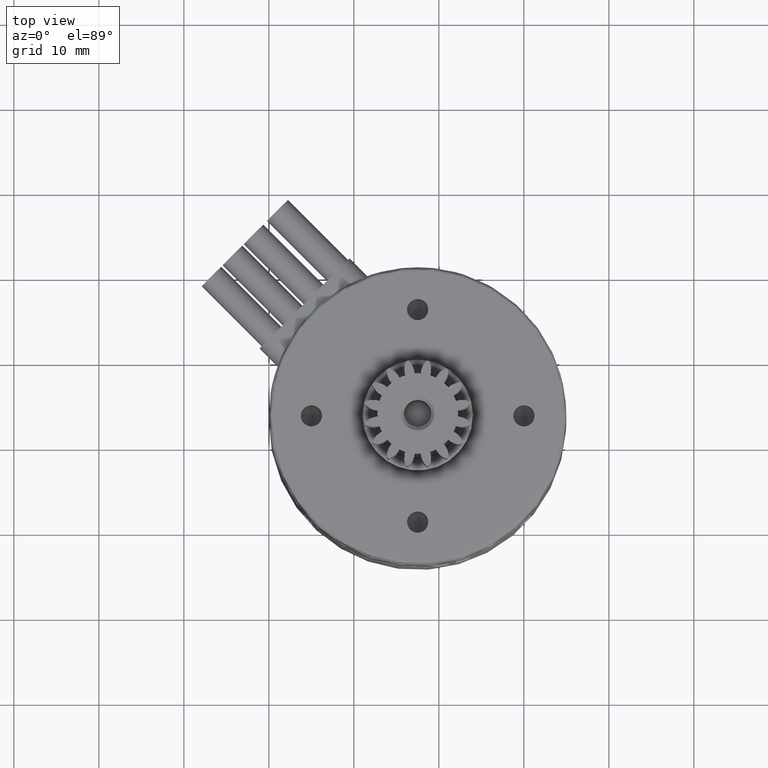
[diagram: clean part render]
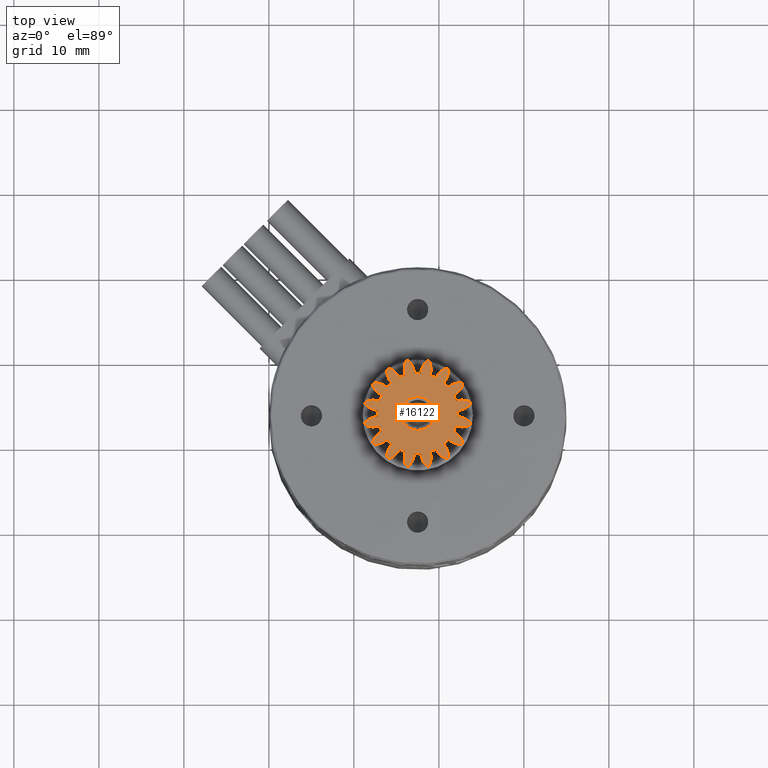
[diagram: same view with one face highlighted and labeled with its STEP entity id]
A machine part, top view. The second image highlights one B-rep face of the part: STEP entity #16122.
In plain terms, the highlighted planar face has unit normal (-0, 0, -1).
Its self-contained STEP definition (entity closure, byte-faithful):
#16 = ORIENTED_EDGE ( 'NONE', *, *, #18248, .F. ) ;
#38 = CARTESIAN_POINT ( 'NONE',  ( 19.64160035881336341, 7.460667869012042708, 16.43799999999999883 ) ) ;
#48 = EDGE_CURVE ( 'NONE', #3403, #8723, #20826, .T. ) ;
#72 = DIRECTION ( 'NONE',  ( -7.344299220900964339E-16, 1.000000000000000000, 0.0000000000000000000 ) ) ;
#78 = DIRECTION ( 'NONE',  ( -4.560602108308974500E-31, 8.326672684688696240E-17, -1.000000000000000000 ) ) ;
#124 = VERTEX_POINT ( 'NONE', #7752 ) ;
#179 = DIRECTION ( 'NONE',  ( -4.560602108308974500E-31, 8.326672684688696240E-17, -1.000000000000000000 ) ) ;
#191 = EDGE_CURVE ( 'NONE', #17688, #6546, #9342, .T. ) ;
#192 = VERTEX_POINT ( 'NONE', #6217 ) ;
#216 = CARTESIAN_POINT ( 'NONE',  ( 12.42549779714402547, 4.643199292763132036, 16.43799999999999883 ) ) ;
#241 = AXIS2_PLACEMENT_3D ( 'NONE', #12802, #19416, #4462 ) ;
#242 = AXIS2_PLACEMENT_3D ( 'NONE', #1422, #8036, #14710 ) ;
#255 = VERTEX_POINT ( 'NONE', #11267 ) ;
#332 = CARTESIAN_POINT ( 'NONE',  ( 13.00826806018880610, 4.713051667194275041, 16.43799999999999883 ) ) ;
#354 = VERTEX_POINT ( 'NONE', #19208 ) ;
#356 = ORIENTED_EDGE ( 'NONE', *, *, #19332, .F. ) ;
#359 = ORIENTED_EDGE ( 'NONE', *, *, #8009, .T. ) ;
#429 = VERTEX_POINT ( 'NONE', #13133 ) ;
#443 = DIRECTION ( 'NONE',  ( -4.560602108308974500E-31, 8.326672684688696240E-17, -1.000000000000000000 ) ) ;
#504 = DIRECTION ( 'NONE',  ( 1.468859844180192868E-15, 1.000000000000000000, 0.0000000000000000000 ) ) ;
#506 = ORIENTED_EDGE ( 'NONE', *, *, #17057, .F. ) ;
#560 = VERTEX_POINT ( 'NONE', #38 ) ;
#594 = ORIENTED_EDGE ( 'NONE', *, *, #5310, .F. ) ;
#602 = CARTESIAN_POINT ( 'NONE',  ( 17.49999999999999645, 3.249999999999995115, 16.43799999999999883 ) ) ;
#621 = VERTEX_POINT ( 'NONE', #15477 ) ;
#644 = EDGE_LOOP ( 'NONE', ( #594, #1822, #14372, #14047, #3829, #14869, #17156, #10220, #356, #14486, #17700, #9853, #5382, #19075, #4258, #18854, #17102, #21451, #6020, #11764, #8272, #7729, #12358, #5406, #12091, #20015, #15062, #11510, #16, #9834, #17848, #506, #4329, #13867, #12229, #16335, #11917, #6565, #13084, #2199, #8430, #5374, #21521, #3550, #15057, #10336, #15132, #19549, #13781, #4993, #4278, #9212, #13935, #1363, #10090, #1572, #5559, #15246, #20707, #20390, #10887, #18899, #17422, #11987 ) ) ;
#650 = AXIS2_PLACEMENT_3D ( 'NONE', #12245, #18870, #3922 ) ;
#721 = CARTESIAN_POINT ( 'NONE',  ( 17.49999999999999645, 3.249999999999995115, 16.43799999999999883 ) ) ;
#825 = EDGE_CURVE ( 'NONE', #621, #12781, #5616, .T. ) ;
#835 = EDGE_LOOP ( 'NONE', ( #359 ) ) ;
#849 = CARTESIAN_POINT ( 'NONE',  ( 17.49999999999999645, 3.249999999999995115, 16.43799999999999883 ) ) ;
#1041 = DIRECTION ( 'NONE',  ( -4.560602108308974500E-31, 8.326672684688696240E-17, -1.000000000000000000 ) ) ;
#1110 = VERTEX_POINT ( 'NONE', #3873 ) ;
#1189 = CARTESIAN_POINT ( 'NONE',  ( 22.20970483844815391, 3.617227905663505272, 16.43799999999999883 ) ) ;
#1262 = CIRCLE ( 'NONE', #13092, 4.723999999999998423 ) ;
#1279 = VERTEX_POINT ( 'NONE', #19356 ) ;
#1329 = AXIS2_PLACEMENT_3D ( 'NONE', #17771, #2848, #9512 ) ;
#1363 = ORIENTED_EDGE ( 'NONE', *, *, #17955, .F. ) ;
#1387 = VERTEX_POINT ( 'NONE', #6252 ) ;
#1411 = CARTESIAN_POINT ( 'NONE',  ( 12.17453640476358068, 6.615922978294589640, 16.43799999999999883 ) ) ;
#1422 = CARTESIAN_POINT ( 'NONE',  ( 17.49999999999999645, 3.249999999999995115, 16.43799999999999883 ) ) ;
#1474 = AXIS2_PLACEMENT_3D ( 'NONE', #13990, #4041, #10717 ) ;
#1499 = EDGE_CURVE ( 'NONE', #8723, #15403, #8111, .T. ) ;
#1572 = ORIENTED_EDGE ( 'NONE', *, *, #16524, .F. ) ;
#1613 = VERTEX_POINT ( 'NONE', #8238 ) ;
#1637 = DIRECTION ( 'NONE',  ( -4.406579532540578603E-15, 1.000000000000000000, 0.0000000000000000000 ) ) ;
#1685 = CARTESIAN_POINT ( 'NONE',  ( 20.57059488631817246, 6.839933570989387590, 16.43799999999999883 ) ) ;
#1699 = VERTEX_POINT ( 'NONE', #1685 ) ;
#1822 = ORIENTED_EDGE ( 'NONE', *, *, #13889, .F. ) ;
#1840 = DIRECTION ( 'NONE',  ( -4.560602108308974500E-31, 8.326672684688696240E-17, -1.000000000000000000 ) ) ;
#1886 = VERTEX_POINT ( 'NONE', #4440 ) ;
#1953 = CARTESIAN_POINT ( 'NONE',  ( 21.71066786901203827, 1.108399641186615936, 16.43799999999999883 ) ) ;
#1985 = EDGE_CURVE ( 'NONE', #14928, #20889, #3616, .T. ) ;
#1993 = CARTESIAN_POINT ( 'NONE',  ( 21.13200385836255535, -1.897674035216246891, 16.43799999999999883 ) ) ;
#2058 = CARTESIAN_POINT ( 'NONE',  ( 22.82546359523644242, 6.615922978294554113, 16.43799999999999883 ) ) ;
#2182 = EDGE_CURVE ( 'NONE', #18251, #20068, #14756, .T. ) ;
#2193 = DIRECTION ( 'NONE',  ( 0.0000000000000000000, -1.000000000000000000, 0.0000000000000000000 ) ) ;
#2199 = ORIENTED_EDGE ( 'NONE', *, *, #48, .F. ) ;
#2409 = DIRECTION ( 'NONE',  ( -4.560602108308974500E-31, 8.326672684688696240E-17, -1.000000000000000000 ) ) ;
#2447 = VERTEX_POINT ( 'NONE', #18902 ) ;
#2449 = CARTESIAN_POINT ( 'NONE',  ( 14.27092376817381236, 7.405074435578862690, 16.43799999999999883 ) ) ;
#2482 = EDGE_CURVE ( 'NONE', #18735, #9056, #17594, .T. ) ;
#2500 = EDGE_CURVE ( 'NONE', #9529, #16804, #5088, .T. ) ;
#2637 = DIRECTION ( 'NONE',  ( -4.560602108308974500E-31, 8.326672684688696240E-17, -1.000000000000000000 ) ) ;
#2669 = CARTESIAN_POINT ( 'NONE',  ( 14.89692574867159180, 7.823355586242648485, 16.43799999999999883 ) ) ;
#2728 = DIRECTION ( 'NONE',  ( -4.560602108308974500E-31, 8.326672684688696240E-17, -1.000000000000000000 ) ) ;
#2810 = EDGE_CURVE ( 'NONE', #9051, #12481, #1262, .T. ) ;
#2848 = DIRECTION ( 'NONE',  ( -4.560602108308974500E-31, 8.326672684688695007E-17, -1.000000000000000000 ) ) ;
#2902 = CARTESIAN_POINT ( 'NONE',  ( 18.96305166719422886, -1.241731939811213437, 16.43799999999999883 ) ) ;
#2903 = CARTESIAN_POINT ( 'NONE',  ( 13.00826806018878479, 1.786948332805779804, 16.43799999999999883 ) ) ;
#2943 = CARTESIAN_POINT ( 'NONE',  ( 13.86799614163733452, -1.897674035216170951, 16.43799999999999883 ) ) ;
#3012 = AXIS2_PLACEMENT_3D ( 'NONE', #18192, #3281, #9930 ) ;
#3126 = CARTESIAN_POINT ( 'NONE',  ( 23.70816977518319391, 2.178259339904550007, 16.43799999999999883 ) ) ;
#3181 = EDGE_CURVE ( 'NONE', #4449, #17505, #11340, .T. ) ;
#3183 = CIRCLE ( 'NONE', #20902, 2.239999999999999769 ) ;
#3201 = CARTESIAN_POINT ( 'NONE',  ( 18.57174066009541846, 9.458169775183190353, 16.43799999999999883 ) ) ;
#3281 = DIRECTION ( 'NONE',  ( -4.560602108308974500E-31, 8.326672684688696240E-17, -1.000000000000000000 ) ) ;
#3309 = CARTESIAN_POINT ( 'NONE',  ( 17.49999999999999645, 3.249999999999995115, 16.43799999999999883 ) ) ;
#3403 = VERTEX_POINT ( 'NONE', #7944 ) ;
#3432 = DIRECTION ( 'NONE',  ( 2.312964634635743844E-14, 1.000000000000000000, 0.0000000000000000000 ) ) ;
#3444 = AXIS2_PLACEMENT_3D ( 'NONE', #7858, #14533, #21142 ) ;
#3522 = DIRECTION ( 'NONE',  ( 0.0000000000000000000, 1.000000000000000000, 0.0000000000000000000 ) ) ;
#3544 = VERTEX_POINT ( 'NONE', #14828 ) ;
#3550 = ORIENTED_EDGE ( 'NONE', *, *, #3709, .F. ) ;
#3616 = CIRCLE ( 'NONE', #20303, 2.239999999999999769 ) ;
#3628 = DIRECTION ( 'NONE',  ( -1.028201890926134929E-14, 1.000000000000000000, 0.0000000000000000000 ) ) ;
#3709 = EDGE_CURVE ( 'NONE', #18360, #9529, #17582, .T. ) ;
#3829 = ORIENTED_EDGE ( 'NONE', *, *, #21263, .F. ) ;
#3867 = DIRECTION ( 'NONE',  ( -4.560602108308974500E-31, 8.326672684688696240E-17, -1.000000000000000000 ) ) ;
#3873 = CARTESIAN_POINT ( 'NONE',  ( 14.42940511368179735, -0.3399335709893757107, 16.43799999999999883 ) ) ;
#3896 = AXIS2_PLACEMENT_3D ( 'NONE', #4150, #10830, #17453 ) ;
#3922 = DIRECTION ( 'NONE',  ( 1.762631813016231441E-14, 1.000000000000000000, 0.0000000000000000000 ) ) ;
#3944 = EDGE_CURVE ( 'NONE', #9056, #7755, #10590, .T. ) ;
#3962 = CARTESIAN_POINT ( 'NONE',  ( 17.49999999999999645, 3.249999999999995115, 16.43799999999999883 ) ) ;
#3973 = CARTESIAN_POINT ( 'NONE',  ( 16.84522039075994115, 8.471383010225283172, 16.43799999999999883 ) ) ;
#4020 = VERTEX_POINT ( 'NONE', #13267 ) ;
#4041 = DIRECTION ( 'NONE',  ( -4.560602108308974500E-31, 8.326672684688696240E-17, -1.000000000000000000 ) ) ;
#4063 = DIRECTION ( 'NONE',  ( -4.560602108308974500E-31, 8.326672684688696240E-17, -1.000000000000000000 ) ) ;
#4076 = CARTESIAN_POINT ( 'NONE',  ( 13.86799614163740557, 8.397674035216212474, 16.43799999999999883 ) ) ;
#4082 = CIRCLE ( 'NONE', #650, 4.723999999999998423 ) ;
#4102 = CIRCLE ( 'NONE', #11101, 2.239999999999999769 ) ;
#4106 = CARTESIAN_POINT ( 'NONE',  ( 11.29183022481679721, 4.321740660095398034, 16.43799999999999883 ) ) ;
#4112 = DIRECTION ( 'NONE',  ( 0.0000000000000000000, 1.000000000000000000, 0.0000000000000000000 ) ) ;
#4150 = CARTESIAN_POINT ( 'NONE',  ( 16.84522039075986655, -1.971383010225281618, 16.43799999999999883 ) ) ;
#4153 = DIRECTION ( 'NONE',  ( 0.0000000000000000000, 1.000000000000000000, 0.0000000000000000000 ) ) ;
#4161 = EDGE_CURVE ( 'NONE', #20889, #4548, #13791, .T. ) ;
#4187 = CARTESIAN_POINT ( 'NONE',  ( 17.49999999999999645, 3.249999999999995115, 16.43799999999999883 ) ) ;
#4258 = ORIENTED_EDGE ( 'NONE', *, *, #191, .F. ) ;
#4260 = EDGE_CURVE ( 'NONE', #255, #1387, #20316, .T. ) ;
#4268 = CARTESIAN_POINT ( 'NONE',  ( 15.35839964118666678, 7.460667869012057807, 16.43799999999999883 ) ) ;
#4278 = ORIENTED_EDGE ( 'NONE', *, *, #4611, .F. ) ;
#4303 = AXIS2_PLACEMENT_3D ( 'NONE', #13525, #20128, #5203 ) ;
#4329 = ORIENTED_EDGE ( 'NONE', *, *, #20745, .F. ) ;
#4331 = CIRCLE ( 'NONE', #5346, 2.239999999999999769 ) ;
#4365 = CIRCLE ( 'NONE', #9251, 6.299999999999997158 ) ;
#4428 = DIRECTION ( 'NONE',  ( -4.560602108308974500E-31, 8.326672684688696240E-17, -1.000000000000000000 ) ) ;
#4440 = CARTESIAN_POINT ( 'NONE',  ( 18.96305166719429280, 7.741731939811183238, 16.43799999999999883 ) ) ;
#4449 = VERTEX_POINT ( 'NONE', #14858 ) ;
#4462 = DIRECTION ( 'NONE',  ( 3.097720492815728645E-15, 1.000000000000000000, 0.0000000000000000000 ) ) ;
#4530 = CARTESIAN_POINT ( 'NONE',  ( 17.49999999999999645, 3.249999999999995115, 16.43799999999999883 ) ) ;
#4548 = VERTEX_POINT ( 'NONE', #5380 ) ;
#4607 = DIRECTION ( 'NONE',  ( 1.548860246407864322E-15, 1.000000000000000000, 0.0000000000000000000 ) ) ;
#4611 = EDGE_CURVE ( 'NONE', #354, #6172, #17893, .T. ) ;
#4656 = CIRCLE ( 'NONE', #14777, 4.723999999999998423 ) ;
#4736 = CIRCLE ( 'NONE', #20066, 6.299999999999997158 ) ;
#4746 = VERTEX_POINT ( 'NONE', #21386 ) ;
#4768 = EDGE_CURVE ( 'NONE', #1699, #16063, #9605, .T. ) ;
#4774 = VERTEX_POINT ( 'NONE', #6679 ) ;
#4793 = AXIS2_PLACEMENT_3D ( 'NONE', #6531, #13227, #19827 ) ;
#4836 = CARTESIAN_POINT ( 'NONE',  ( 17.49999999999999645, 3.249999999999995115, 16.43799999999999883 ) ) ;
#4840 = CARTESIAN_POINT ( 'NONE',  ( 12.92664441375735329, 5.853074251328418853, 16.43799999999999883 ) ) ;
#4884 = CARTESIAN_POINT ( 'NONE',  ( 11.35426161594251049, 4.635604458250040416, 16.43799999999999883 ) ) ;
#4887 = EDGE_CURVE ( 'NONE', #12481, #15880, #10668, .T. ) ;
#4993 = ORIENTED_EDGE ( 'NONE', *, *, #18539, .F. ) ;
#5059 = EDGE_CURVE ( 'NONE', #6352, #9746, #18649, .T. ) ;
#5074 = CIRCLE ( 'NONE', #242, 4.723999999999998423 ) ;
#5085 = CIRCLE ( 'NONE', #9622, 2.239999999999999769 ) ;
#5088 = CIRCLE ( 'NONE', #9233, 4.723999999999998423 ) ;
#5093 = DIRECTION ( 'NONE',  ( -4.560602108308974500E-31, 8.326672684688696240E-17, -1.000000000000000000 ) ) ;
#5203 = DIRECTION ( 'NONE',  ( 6.663540971212500378E-14, 1.000000000000000000, 0.0000000000000000000 ) ) ;
#5310 = EDGE_CURVE ( 'NONE', #192, #6112, #19000, .T. ) ;
#5346 = AXIS2_PLACEMENT_3D ( 'NONE', #19011, #4063, #10736 ) ;
#5357 = DIRECTION ( 'NONE',  ( -4.560602108308974500E-31, 8.326672684688696240E-17, -1.000000000000000000 ) ) ;
#5374 = ORIENTED_EDGE ( 'NONE', *, *, #11445, .F. ) ;
#5380 = CARTESIAN_POINT ( 'NONE',  ( 15.35839964118660816, -0.9606678690120387110, 16.43799999999999883 ) ) ;
#5382 = ORIENTED_EDGE ( 'NONE', *, *, #19456, .F. ) ;
#5386 = CARTESIAN_POINT ( 'NONE',  ( 22.57450220285598164, 4.643199292763095620, 16.43799999999999883 ) ) ;
#5406 = ORIENTED_EDGE ( 'NONE', *, *, #15163, .F. ) ;
#5422 = CARTESIAN_POINT ( 'NONE',  ( 12.27861698977472393, 3.904779609240145888, 16.43799999999999883 ) ) ;
#5476 = DIRECTION ( 'NONE',  ( -4.560602108308974500E-31, 8.326672684688696240E-17, -1.000000000000000000 ) ) ;
#5496 = CARTESIAN_POINT ( 'NONE',  ( 18.89319929276308230, -1.824502202855992739, 16.43799999999999883 ) ) ;
#5523 = DIRECTION ( 'NONE',  ( -4.560602108308974500E-31, 8.326672684688696240E-17, -1.000000000000000000 ) ) ;
#5549 = DIRECTION ( 'NONE',  ( 0.0000000000000000000, 1.000000000000000000, 0.0000000000000000000 ) ) ;
#5559 = ORIENTED_EDGE ( 'NONE', *, *, #10840, .F. ) ;
#5585 = CARTESIAN_POINT ( 'NONE',  ( 18.88560445825006795, 9.395738384057480630, 16.43799999999999883 ) ) ;
#5599 = AXIS2_PLACEMENT_3D ( 'NONE', #5422, #12111, #18730 ) ;
#5616 = CIRCLE ( 'NONE', #7029, 2.239999999999998881 ) ;
#5620 = DIRECTION ( 'NONE',  ( -4.560602108308974500E-31, 8.326672684688696240E-17, -1.000000000000000000 ) ) ;
#5693 = CIRCLE ( 'NONE', #17570, 2.239999999999999769 ) ;
#5818 = EDGE_CURVE ( 'NONE', #1110, #7831, #5074, .T. ) ;
#5828 = CARTESIAN_POINT ( 'NONE',  ( 16.10680070723680757, -1.824502202855963429, 16.43799999999999883 ) ) ;
#5855 = EDGE_CURVE ( 'NONE', #16701, #11599, #4331, .T. ) ;
#5884 = CARTESIAN_POINT ( 'NONE',  ( 22.57450220285596032, 1.856800707236822001, 16.43799999999999883 ) ) ;
#5931 = DIRECTION ( 'NONE',  ( -4.560602108308974500E-31, 8.326672684688696240E-17, -1.000000000000000000 ) ) ;
#6020 = ORIENTED_EDGE ( 'NONE', *, *, #18641, .F. ) ;
#6042 = DIRECTION ( 'NONE',  ( -4.560602108308974500E-31, 8.326672684688696240E-17, -1.000000000000000000 ) ) ;
#6081 = AXIS2_PLACEMENT_3D ( 'NONE', #3962, #10632, #17267 ) ;
#6108 = CIRCLE ( 'NONE', #19698, 6.299999999999997158 ) ;
#6112 = VERTEX_POINT ( 'NONE', #16279 ) ;
#6146 = CARTESIAN_POINT ( 'NONE',  ( 12.79029516155184432, 2.882772094336451207, 16.43799999999999883 ) ) ;
#6172 = VERTEX_POINT ( 'NONE', #21270 ) ;
#6177 = CARTESIAN_POINT ( 'NONE',  ( 17.49999999999999645, 3.249999999999995115, 16.43799999999999883 ) ) ;
#6217 = CARTESIAN_POINT ( 'NONE',  ( 16.11439554174997468, 9.395738384057491288, 16.43799999999999883 ) ) ;
#6252 = CARTESIAN_POINT ( 'NONE',  ( 11.29183022481679721, 2.178259339904593528, 16.43799999999999883 ) ) ;
#6299 = CARTESIAN_POINT ( 'NONE',  ( 20.72907623182615566, -0.9050744355788946649, 16.43799999999999883 ) ) ;
#6352 = VERTEX_POINT ( 'NONE', #16797 ) ;
#6360 = DIRECTION ( 'NONE',  ( -7.344299220900963550E-15, 1.000000000000000000, 0.0000000000000000000 ) ) ;
#6420 = DIRECTION ( 'NONE',  ( -4.560602108308974500E-31, 8.326672684688696240E-17, -1.000000000000000000 ) ) ;
#6509 = CARTESIAN_POINT ( 'NONE',  ( 18.15477960924002332, -1.971383010225295607, 16.43799999999999883 ) ) ;
#6531 = CARTESIAN_POINT ( 'NONE',  ( 13.34492556442109823, 0.02092376817385216761, 16.43799999999999883 ) ) ;
#6546 = VERTEX_POINT ( 'NONE', #11053 ) ;
#6556 = VERTEX_POINT ( 'NONE', #17657 ) ;
#6565 = ORIENTED_EDGE ( 'NONE', *, *, #13207, .F. ) ;
#6667 = CARTESIAN_POINT ( 'NONE',  ( 21.08993357098938048, 0.1794051136818062553, 16.43799999999999883 ) ) ;
#6679 = CARTESIAN_POINT ( 'NONE',  ( 17.86722790566349062, -1.459704838448162567, 16.43799999999999883 ) ) ;
#6684 = DIRECTION ( 'NONE',  ( 1.395416851971183106E-14, 1.000000000000000000, 0.0000000000000000000 ) ) ;
#6785 = CARTESIAN_POINT ( 'NONE',  ( 22.07335558624262362, 0.6469257486715388472, 16.43799999999999883 ) ) ;
#6793 = DIRECTION ( 'NONE',  ( 6.388188038517768593E-14, 1.000000000000000000, 0.0000000000000000000 ) ) ;
#6804 = CIRCLE ( 'NONE', #8554, 2.239999999999999769 ) ;
#6815 = CIRCLE ( 'NONE', #10661, 6.299999999999997158 ) ;
#6826 = CARTESIAN_POINT ( 'NONE',  ( 17.49999999999999645, 3.249999999999995115, 16.43799999999999883 ) ) ;
#6829 = DIRECTION ( 'NONE',  ( -4.560602108308974500E-31, 8.326672684688696240E-17, -1.000000000000000000 ) ) ;
#6879 = EDGE_CURVE ( 'NONE', #4774, #4020, #18974, .T. ) ;
#7029 = AXIS2_PLACEMENT_3D ( 'NONE', #12440, #19064, #4112 ) ;
#7039 = EDGE_CURVE ( 'NONE', #4746, #2447, #5085, .T. ) ;
#7058 = DIRECTION ( 'NONE',  ( -1.548860246407863731E-15, 1.000000000000000000, 0.0000000000000000000 ) ) ;
#7062 = CARTESIAN_POINT ( 'NONE',  ( 17.49999999999999645, 3.249999999999995115, 16.43799999999999883 ) ) ;
#7336 = DIRECTION ( 'NONE',  ( -4.560602108308974500E-31, 8.326672684688696240E-17, -1.000000000000000000 ) ) ;
#7392 = CARTESIAN_POINT ( 'NONE',  ( 18.89319929276315335, 8.324502202855963873, 16.43799999999999883 ) ) ;
#7456 = DIRECTION ( 'NONE',  ( -4.560602108308974500E-31, 8.326672684688696240E-17, -1.000000000000000000 ) ) ;
#7507 = CARTESIAN_POINT ( 'NONE',  ( 12.92664441375735329, 0.6469257486715713767, 16.43799999999999883 ) ) ;
#7644 = FACE_BOUND ( 'NONE', #835, .T. ) ;
#7651 = DIRECTION ( 'NONE',  ( -3.097720492815725884E-15, 1.000000000000000000, 0.0000000000000000000 ) ) ;
#7659 = AXIS2_PLACEMENT_3D ( 'NONE', #17347, #2409, #9074 ) ;
#7729 = ORIENTED_EDGE ( 'NONE', *, *, #18613, .F. ) ;
#7752 = CARTESIAN_POINT ( 'NONE',  ( 23.64573838405749839, 4.635604458249995119, 16.43799999999999883 ) ) ;
#7755 = VERTEX_POINT ( 'NONE', #3201 ) ;
#7784 = AXIS2_PLACEMENT_3D ( 'NONE', #602, #12261, #18883 ) ;
#7799 = CIRCLE ( 'NONE', #14438, 2.240000000000000657 ) ;
#7801 = CARTESIAN_POINT ( 'NONE',  ( 17.86722790566356167, 7.959704838448147690, 16.43799999999999883 ) ) ;
#7831 = VERTEX_POINT ( 'NONE', #10061 ) ;
#7858 = CARTESIAN_POINT ( 'NONE',  ( 17.49999999999999645, 3.249999999999995115, 16.43799999999999883 ) ) ;
#7943 = VERTEX_POINT ( 'NONE', #1993 ) ;
#7944 = CARTESIAN_POINT ( 'NONE',  ( 22.64767403521617695, -0.3820038583626527706, 16.43799999999999883 ) ) ;
#8009 = EDGE_CURVE ( 'NONE', #1613, #1613, #14163, .T. ) ;
#8036 = DIRECTION ( 'NONE',  ( -4.560602108308974500E-31, 8.326672684688696240E-17, -1.000000000000000000 ) ) ;
#8061 = CIRCLE ( 'NONE', #16401, 6.299999999999997158 ) ;
#8111 = CIRCLE ( 'NONE', #11935, 4.723999999999998423 ) ;
#8129 = CARTESIAN_POINT ( 'NONE',  ( 17.49999999999999645, 3.249999999999995115, 16.43799999999999883 ) ) ;
#8149 = AXIS2_PLACEMENT_3D ( 'NONE', #2449, #9119, #15761 ) ;
#8230 = AXIS2_PLACEMENT_3D ( 'NONE', #20546, #5620, #12309 ) ;
#8238 = CARTESIAN_POINT ( 'NONE',  ( 17.49999999999999645, 1.268999999999996797, 16.43799999999999883 ) ) ;
#8272 = ORIENTED_EDGE ( 'NONE', *, *, #17008, .F. ) ;
#8322 = EDGE_CURVE ( 'NONE', #9350, #18992, #4736, .T. ) ;
#8334 = CARTESIAN_POINT ( 'NONE',  ( 17.49999999999999645, 3.249999999999995115, 16.43799999999999883 ) ) ;
#8430 = ORIENTED_EDGE ( 'NONE', *, *, #15166, .F. ) ;
#8480 = DIRECTION ( 'NONE',  ( 0.0000000000000000000, 1.000000000000000000, 0.0000000000000000000 ) ) ;
#8554 = AXIS2_PLACEMENT_3D ( 'NONE', #15361, #443, #7058 ) ;
#8671 = EDGE_CURVE ( 'NONE', #12781, #10045, #14507, .T. ) ;
#8723 = VERTEX_POINT ( 'NONE', #6667 ) ;
#8751 = CIRCLE ( 'NONE', #9797, 2.239999999999999769 ) ;
#8780 = CARTESIAN_POINT ( 'NONE',  ( 17.49999999999999645, 3.249999999999995115, 16.43799999999999883 ) ) ;
#8966 = CIRCLE ( 'NONE', #4793, 2.239999999999999769 ) ;
#8996 = AXIS2_PLACEMENT_3D ( 'NONE', #9895, #16529, #1637 ) ;
#9051 = VERTEX_POINT ( 'NONE', #1189 ) ;
#9056 = VERTEX_POINT ( 'NONE', #7801 ) ;
#9074 = DIRECTION ( 'NONE',  ( 3.097720492815727461E-15, 1.000000000000000000, 0.0000000000000000000 ) ) ;
#9119 = DIRECTION ( 'NONE',  ( -4.560602108308974500E-31, 8.326672684688696240E-17, -1.000000000000000000 ) ) ;
#9153 = VERTEX_POINT ( 'NONE', #1411 ) ;
#9212 = ORIENTED_EDGE ( 'NONE', *, *, #12831, .F. ) ;
#9233 = AXIS2_PLACEMENT_3D ( 'NONE', #721, #7336, #14023 ) ;
#9251 = AXIS2_PLACEMENT_3D ( 'NONE', #11745, #18345, #3432 ) ;
#9264 = CIRCLE ( 'NONE', #20358, 4.723999999999998423 ) ;
#9308 = DIRECTION ( 'NONE',  ( -7.744301232039321217E-15, 1.000000000000000000, 0.0000000000000000000 ) ) ;
#9340 = DIRECTION ( 'NONE',  ( -4.560602108308974500E-31, 8.326672684688696240E-17, -1.000000000000000000 ) ) ;
#9342 = CIRCLE ( 'NONE', #3444, 4.723999999999998423 ) ;
#9350 = VERTEX_POINT ( 'NONE', #18362 ) ;
#9398 = DIRECTION ( 'NONE',  ( 0.0000000000000000000, 1.000000000000000000, 0.0000000000000000000 ) ) ;
#9431 = AXIS2_PLACEMENT_3D ( 'NONE', #20461, #5523, #12218 ) ;
#9506 = CARTESIAN_POINT ( 'NONE',  ( 12.35232596478374312, -0.3820038583625443573, 16.43799999999999883 ) ) ;
#9512 = DIRECTION ( 'NONE',  ( -5.551115123125782702E-17, -1.000000000000000000, -8.326672684688695007E-17 ) ) ;
#9529 = VERTEX_POINT ( 'NONE', #14100 ) ;
#9605 = CIRCLE ( 'NONE', #17613, 4.723999999999998423 ) ;
#9622 = AXIS2_PLACEMENT_3D ( 'NONE', #216, #6829, #13513 ) ;
#9746 = VERTEX_POINT ( 'NONE', #2943 ) ;
#9784 = CARTESIAN_POINT ( 'NONE',  ( 18.88560445824997203, -2.895738384057510828, 16.43799999999999883 ) ) ;
#9797 = AXIS2_PLACEMENT_3D ( 'NONE', #5496, #12190, #18805 ) ;
#9834 = ORIENTED_EDGE ( 'NONE', *, *, #13085, .F. ) ;
#9853 = ORIENTED_EDGE ( 'NONE', *, *, #5855, .F. ) ;
#9895 = CARTESIAN_POINT ( 'NONE',  ( 17.49999999999999645, 3.249999999999995115, 16.43799999999999883 ) ) ;
#9900 = CARTESIAN_POINT ( 'NONE',  ( 16.11439554174989297, -2.895738384057481074, 16.43799999999999883 ) ) ;
#9930 = DIRECTION ( 'NONE',  ( -2.643388153869421672E-14, 1.000000000000000000, 0.0000000000000000000 ) ) ;
#9962 = DIRECTION ( 'NONE',  ( -4.560602108308974500E-31, 8.326672684688696240E-17, -1.000000000000000000 ) ) ;
#10045 = VERTEX_POINT ( 'NONE', #17605 ) ;
#10061 = CARTESIAN_POINT ( 'NONE',  ( 13.91006642901055201, 0.1794051136818812786, 16.43799999999999883 ) ) ;
#10090 = ORIENTED_EDGE ( 'NONE', *, *, #4768, .F. ) ;
#10091 = EDGE_CURVE ( 'NONE', #6112, #18735, #18822, .T. ) ;
#10127 = CIRCLE ( 'NONE', #9431, 2.240000000000000657 ) ;
#10194 = EDGE_CURVE ( 'NONE', #124, #14075, #8061, .T. ) ;
#10216 = CIRCLE ( 'NONE', #13720, 6.299999999999997158 ) ;
#10220 = ORIENTED_EDGE ( 'NONE', *, *, #7039, .F. ) ;
#10232 = CIRCLE ( 'NONE', #13403, 2.239999999999999769 ) ;
#10319 = AXIS2_PLACEMENT_3D ( 'NONE', #10486, #17119, #2193 ) ;
#10336 = ORIENTED_EDGE ( 'NONE', *, *, #4887, .F. ) ;
#10371 = VERTEX_POINT ( 'NONE', #5585 ) ;
#10377 = CIRCLE ( 'NONE', #19759, 2.240000000000000657 ) ;
#10486 = CARTESIAN_POINT ( 'NONE',  ( 17.49999999999999645, 3.249999999999995115, 16.43799999999999883 ) ) ;
#10537 = DIRECTION ( 'NONE',  ( 0.0000000000000000000, 1.000000000000000000, 0.0000000000000000000 ) ) ;
#10590 = CIRCLE ( 'NONE', #12763, 2.239999999999998881 ) ;
#10632 = DIRECTION ( 'NONE',  ( -4.560602108308974500E-31, 8.326672684688696240E-17, -1.000000000000000000 ) ) ;
#10642 = CIRCLE ( 'NONE', #14492, 6.299999999999997158 ) ;
#10646 = DIRECTION ( 'NONE',  ( -4.560602108308974500E-31, 8.326672684688696240E-17, -1.000000000000000000 ) ) ;
#10661 = AXIS2_PLACEMENT_3D ( 'NONE', #4530, #11220, #17831 ) ;
#10668 = CIRCLE ( 'NONE', #13125, 2.239999999999999769 ) ;
#10683 = CARTESIAN_POINT ( 'NONE',  ( 16.03694833280567522, -1.241731939811183905, 16.43799999999999883 ) ) ;
#10684 = AXIS2_PLACEMENT_3D ( 'NONE', #11939, #18551, #3628 ) ;
#10717 = DIRECTION ( 'NONE',  ( -2.753529326947313913E-15, 1.000000000000000000, 0.0000000000000000000 ) ) ;
#10736 = DIRECTION ( 'NONE',  ( 0.0000000000000000000, 1.000000000000000000, 0.0000000000000000000 ) ) ;
#10830 = DIRECTION ( 'NONE',  ( -4.560602108308974500E-31, 8.326672684688696240E-17, -1.000000000000000000 ) ) ;
#10840 = EDGE_CURVE ( 'NONE', #20950, #1279, #12598, .T. ) ;
#10844 = EDGE_CURVE ( 'NONE', #12784, #6556, #15357, .T. ) ;
#10876 = DIRECTION ( 'NONE',  ( -4.560602108308974500E-31, 8.326672684688696240E-17, -1.000000000000000000 ) ) ;
#10887 = ORIENTED_EDGE ( 'NONE', *, *, #13319, .F. ) ;
#10952 = CARTESIAN_POINT ( 'NONE',  ( 12.17453640476353094, -0.1159229782945248866, 16.43799999999999883 ) ) ;
#11004 = AXIS2_PLACEMENT_3D ( 'NONE', #4836, #11521, #18135 ) ;
#11027 = VERTEX_POINT ( 'NONE', #19839 ) ;
#11053 = CARTESIAN_POINT ( 'NONE',  ( 12.79029516155184432, 3.617227905663538579, 16.43799999999999883 ) ) ;
#11101 = AXIS2_PLACEMENT_3D ( 'NONE', #18802, #3867, #10537 ) ;
#11121 = DIRECTION ( 'NONE',  ( -7.269317423140909045E-14, 1.000000000000000000, 0.0000000000000000000 ) ) ;
#11220 = DIRECTION ( 'NONE',  ( -4.560602108308974500E-31, 8.326672684688696240E-17, -1.000000000000000000 ) ) ;
#11267 = CARTESIAN_POINT ( 'NONE',  ( 11.35426161594248917, 1.864395541750039964, 16.43799999999999883 ) ) ;
#11320 = AXIS2_PLACEMENT_3D ( 'NONE', #5386, #12072, #18695 ) ;
#11340 = CIRCLE ( 'NONE', #241, 2.239999999999998881 ) ;
#11445 = EDGE_CURVE ( 'NONE', #16804, #429, #3183, .T. ) ;
#11460 = AXIS2_PLACEMENT_3D ( 'NONE', #13877, #20485, #5549 ) ;
#11510 = ORIENTED_EDGE ( 'NONE', *, *, #1985, .F. ) ;
#11521 = DIRECTION ( 'NONE',  ( -4.560602108308974500E-31, 8.326672684688696240E-17, -1.000000000000000000 ) ) ;
#11526 = DIRECTION ( 'NONE',  ( -4.560602108308974500E-31, 8.326672684688696240E-17, -1.000000000000000000 ) ) ;
#11599 = VERTEX_POINT ( 'NONE', #332 ) ;
#11692 = CIRCLE ( 'NONE', #18602, 2.239999999999999769 ) ;
#11745 = CARTESIAN_POINT ( 'NONE',  ( 17.49999999999999645, 3.249999999999995115, 16.43799999999999883 ) ) ;
#11764 = ORIENTED_EDGE ( 'NONE', *, *, #10844, .F. ) ;
#11773 = DIRECTION ( 'NONE',  ( 0.0000000000000000000, 1.000000000000000000, 0.0000000000000000000 ) ) ;
#11868 = CIRCLE ( 'NONE', #14648, 6.299999999999997158 ) ;
#11917 = ORIENTED_EDGE ( 'NONE', *, *, #13572, .F. ) ;
#11935 = AXIS2_PLACEMENT_3D ( 'NONE', #14673, #21288, #6360 ) ;
#11939 = CARTESIAN_POINT ( 'NONE',  ( 17.49999999999999645, 3.249999999999995115, 16.43799999999999883 ) ) ;
#11987 = ORIENTED_EDGE ( 'NONE', *, *, #10091, .F. ) ;
#12046 = DIRECTION ( 'NONE',  ( -3.097720492815727461E-15, 1.000000000000000000, 0.0000000000000000000 ) ) ;
#12072 = DIRECTION ( 'NONE',  ( -4.560602108308974500E-31, 8.326672684688696240E-17, -1.000000000000000000 ) ) ;
#12091 = ORIENTED_EDGE ( 'NONE', *, *, #5059, .F. ) ;
#12111 = DIRECTION ( 'NONE',  ( -4.560602108308974500E-31, 8.326672684688696240E-17, -1.000000000000000000 ) ) ;
#12170 = DIRECTION ( 'NONE',  ( -7.744301232039314906E-15, 1.000000000000000000, 0.0000000000000000000 ) ) ;
#12190 = DIRECTION ( 'NONE',  ( -4.560602108308974500E-31, 8.326672684688696240E-17, -1.000000000000000000 ) ) ;
#12218 = DIRECTION ( 'NONE',  ( 0.0000000000000000000, 1.000000000000000000, 0.0000000000000000000 ) ) ;
#12229 = ORIENTED_EDGE ( 'NONE', *, *, #18235, .F. ) ;
#12233 = CIRCLE ( 'NONE', #15690, 2.239999999999998881 ) ;
#12245 = CARTESIAN_POINT ( 'NONE',  ( 17.49999999999999645, 3.249999999999995115, 16.43799999999999883 ) ) ;
#12261 = DIRECTION ( 'NONE',  ( -4.560602108308974500E-31, 8.326672684688696240E-17, -1.000000000000000000 ) ) ;
#12309 = DIRECTION ( 'NONE',  ( 0.0000000000000000000, 1.000000000000000000, 0.0000000000000000000 ) ) ;
#12338 = AXIS2_PLACEMENT_3D ( 'NONE', #4187, #10876, #17493 ) ;
#12358 = ORIENTED_EDGE ( 'NONE', *, *, #5818, .F. ) ;
#12440 = CARTESIAN_POINT ( 'NONE',  ( 13.34492556442114264, 6.479076231826193855, 16.43799999999999883 ) ) ;
#12481 = VERTEX_POINT ( 'NONE', #14374 ) ;
#12484 = CARTESIAN_POINT ( 'NONE',  ( 17.49999999999999645, 3.249999999999995115, 16.43799999999999883 ) ) ;
#12517 = DIRECTION ( 'NONE',  ( -4.560602108308974500E-31, 8.326672684688696240E-17, -1.000000000000000000 ) ) ;
#12598 = CIRCLE ( 'NONE', #1474, 6.299999999999997158 ) ;
#12630 = DIRECTION ( 'NONE',  ( 0.0000000000000000000, 1.000000000000000000, 0.0000000000000000000 ) ) ;
#12743 = DIRECTION ( 'NONE',  ( 0.0000000000000000000, 1.000000000000000000, 0.0000000000000000000 ) ) ;
#12763 = AXIS2_PLACEMENT_3D ( 'NONE', #12941, #19553, #4607 ) ;
#12781 = VERTEX_POINT ( 'NONE', #4268 ) ;
#12784 = VERTEX_POINT ( 'NONE', #10952 ) ;
#12802 = CARTESIAN_POINT ( 'NONE',  ( 16.10680070723687862, 8.324502202855972754, 16.43799999999999883 ) ) ;
#12831 = EDGE_CURVE ( 'NONE', #18992, #354, #17417, .T. ) ;
#12872 = DIRECTION ( 'NONE',  ( -4.560602108308974500E-31, 8.326672684688696240E-17, -1.000000000000000000 ) ) ;
#12937 = AXIS2_PLACEMENT_3D ( 'NONE', #15943, #1041, #7651 ) ;
#12941 = CARTESIAN_POINT ( 'NONE',  ( 20.10307425132844017, 7.823355586242631610, 16.43799999999999883 ) ) ;
#13001 = DIRECTION ( 'NONE',  ( -4.560602108308974500E-31, 8.326672684688696240E-17, -1.000000000000000000 ) ) ;
#13084 = ORIENTED_EDGE ( 'NONE', *, *, #1499, .F. ) ;
#13085 = EDGE_CURVE ( 'NONE', #4020, #21091, #16057, .T. ) ;
#13092 = AXIS2_PLACEMENT_3D ( 'NONE', #20859, #5931, #12630 ) ;
#13125 = AXIS2_PLACEMENT_3D ( 'NONE', #6785, #18433, #3522 ) ;
#13126 = DIRECTION ( 'NONE',  ( -2.753529326947313913E-15, 1.000000000000000000, 0.0000000000000000000 ) ) ;
#13133 = CARTESIAN_POINT ( 'NONE',  ( 22.82546359523639268, -0.1159229782946411130, 16.43799999999999883 ) ) ;
#13207 = EDGE_CURVE ( 'NONE', #15403, #7943, #8751, .T. ) ;
#13209 = DIRECTION ( 'NONE',  ( -4.560602108308974500E-31, 8.326672684688696240E-17, -1.000000000000000000 ) ) ;
#13227 = DIRECTION ( 'NONE',  ( -4.560602108308974500E-31, 8.326672684688696240E-17, -1.000000000000000000 ) ) ;
#13267 = CARTESIAN_POINT ( 'NONE',  ( 17.13277209433640280, -1.459704838448154796, 16.43799999999999883 ) ) ;
#13292 = VERTEX_POINT ( 'NONE', #15365 ) ;
#13319 = EDGE_CURVE ( 'NONE', #7755, #10371, #18843, .T. ) ;
#13323 = EDGE_CURVE ( 'NONE', #20060, #255, #16386, .T. ) ;
#13403 = AXIS2_PLACEMENT_3D ( 'NONE', #5828, #12517, #19140 ) ;
#13509 = DIRECTION ( 'NONE',  ( -4.560602108308974500E-31, 8.326672684688696240E-17, -1.000000000000000000 ) ) ;
#13513 = DIRECTION ( 'NONE',  ( 0.0000000000000000000, 1.000000000000000000, 0.0000000000000000000 ) ) ;
#13525 = CARTESIAN_POINT ( 'NONE',  ( 17.49999999999999645, 3.249999999999995115, 16.43799999999999883 ) ) ;
#13572 = EDGE_CURVE ( 'NONE', #7943, #11027, #11868, .T. ) ;
#13720 = AXIS2_PLACEMENT_3D ( 'NONE', #19378, #4428, #11121 ) ;
#13745 = DIRECTION ( 'NONE',  ( -4.560602108308974500E-31, 8.326672684688696240E-17, -1.000000000000000000 ) ) ;
#13781 = ORIENTED_EDGE ( 'NONE', *, *, #10194, .F. ) ;
#13791 = CIRCLE ( 'NONE', #10684, 4.723999999999998423 ) ;
#13867 = ORIENTED_EDGE ( 'NONE', *, *, #2182, .F. ) ;
#13877 = CARTESIAN_POINT ( 'NONE',  ( 12.42549779714400415, 1.856800707236928805, 16.43799999999999883 ) ) ;
#13889 = EDGE_CURVE ( 'NONE', #10045, #192, #15366, .T. ) ;
#13935 = ORIENTED_EDGE ( 'NONE', *, *, #8322, .F. ) ;
#13990 = CARTESIAN_POINT ( 'NONE',  ( 17.49999999999999645, 3.249999999999995115, 16.43799999999999883 ) ) ;
#14023 = DIRECTION ( 'NONE',  ( 0.0000000000000000000, 1.000000000000000000, 0.0000000000000000000 ) ) ;
#14047 = ORIENTED_EDGE ( 'NONE', *, *, #825, .F. ) ;
#14075 = VERTEX_POINT ( 'NONE', #17573 ) ;
#14079 = DIRECTION ( 'NONE',  ( -4.560602108308974500E-31, 8.326672684688696240E-17, -1.000000000000000000 ) ) ;
#14080 = CIRCLE ( 'NONE', #12338, 6.299999999999997158 ) ;
#14100 = CARTESIAN_POINT ( 'NONE',  ( 21.99173193981118146, 1.786948332805682771, 16.43799999999999883 ) ) ;
#14142 = CIRCLE ( 'NONE', #11004, 6.299999999999997158 ) ;
#14145 = DIRECTION ( 'NONE',  ( -7.344299220900964339E-16, 1.000000000000000000, 0.0000000000000000000 ) ) ;
#14163 = CIRCLE ( 'NONE', #10319, 1.980999999999998318 ) ;
#14170 = CIRCLE ( 'NONE', #3012, 6.299999999999997158 ) ;
#14195 = DIRECTION ( 'NONE',  ( -4.560602108308974500E-31, 8.326672684688696240E-17, -1.000000000000000000 ) ) ;
#14201 = CARTESIAN_POINT ( 'NONE',  ( 17.13277209433647030, 7.959704838448149467, 16.43799999999999883 ) ) ;
#14253 = EDGE_CURVE ( 'NONE', #560, #20950, #12233, .T. ) ;
#14321 = FACE_OUTER_BOUND ( 'NONE', #644, .T. ) ;
#14365 = AXIS2_PLACEMENT_3D ( 'NONE', #2669, #9340, #15978 ) ;
#14372 = ORIENTED_EDGE ( 'NONE', *, *, #8671, .F. ) ;
#14374 = CARTESIAN_POINT ( 'NONE',  ( 22.20970483844814680, 2.882772094336417013, 16.43799999999999883 ) ) ;
#14438 = AXIS2_PLACEMENT_3D ( 'NONE', #3973, #10646, #17280 ) ;
#14486 = ORIENTED_EDGE ( 'NONE', *, *, #15083, .F. ) ;
#14492 = AXIS2_PLACEMENT_3D ( 'NONE', #15092, #179, #6793 ) ;
#14507 = CIRCLE ( 'NONE', #14891, 4.723999999999998423 ) ;
#14533 = DIRECTION ( 'NONE',  ( -4.560602108308974500E-31, 8.326672684688696240E-17, -1.000000000000000000 ) ) ;
#14627 = EDGE_CURVE ( 'NONE', #14075, #9051, #10127, .T. ) ;
#14648 = AXIS2_PLACEMENT_3D ( 'NONE', #20969, #6042, #12743 ) ;
#14673 = CARTESIAN_POINT ( 'NONE',  ( 17.49999999999999645, 3.249999999999995115, 16.43799999999999883 ) ) ;
#14682 = AXIS2_PLACEMENT_3D ( 'NONE', #20003, #5093, #11773 ) ;
#14710 = DIRECTION ( 'NONE',  ( 1.101644883135144532E-14, 1.000000000000000000, 0.0000000000000000000 ) ) ;
#14756 = CIRCLE ( 'NONE', #3896, 2.239999999999999769 ) ;
#14777 = AXIS2_PLACEMENT_3D ( 'NONE', #849, #7456, #14145 ) ;
#14794 = DIRECTION ( 'NONE',  ( -4.560602108308974500E-31, 8.326672684688696240E-17, -1.000000000000000000 ) ) ;
#14828 = CARTESIAN_POINT ( 'NONE',  ( 19.64160035881329947, -0.9606678690120837860, 16.43799999999999883 ) ) ;
#14858 = CARTESIAN_POINT ( 'NONE',  ( 14.42940511368184886, 6.839933570989408018, 16.43799999999999883 ) ) ;
#14869 = ORIENTED_EDGE ( 'NONE', *, *, #3181, .F. ) ;
#14891 = AXIS2_PLACEMENT_3D ( 'NONE', #3309, #9962, #16592 ) ;
#14928 = VERTEX_POINT ( 'NONE', #9900 ) ;
#14982 = DIRECTION ( 'NONE',  ( -4.560602108308974500E-31, 8.326672684688696240E-17, -1.000000000000000000 ) ) ;
#14988 = CARTESIAN_POINT ( 'NONE',  ( 17.49999999999999645, 3.249999999999995115, 16.43799999999999883 ) ) ;
#15044 = EDGE_CURVE ( 'NONE', #10371, #1886, #7799, .T. ) ;
#15057 = ORIENTED_EDGE ( 'NONE', *, *, #19190, .F. ) ;
#15062 = ORIENTED_EDGE ( 'NONE', *, *, #4161, .F. ) ;
#15083 = EDGE_CURVE ( 'NONE', #18743, #9153, #17189, .T. ) ;
#15087 = EDGE_CURVE ( 'NONE', #1886, #560, #4656, .T. ) ;
#15092 = CARTESIAN_POINT ( 'NONE',  ( 17.49999999999999645, 3.249999999999995115, 16.43799999999999883 ) ) ;
#15132 = ORIENTED_EDGE ( 'NONE', *, *, #2810, .F. ) ;
#15163 = EDGE_CURVE ( 'NONE', #9746, #1110, #10232, .T. ) ;
#15166 = EDGE_CURVE ( 'NONE', #429, #3403, #14080, .T. ) ;
#15246 = ORIENTED_EDGE ( 'NONE', *, *, #14253, .F. ) ;
#15357 = CIRCLE ( 'NONE', #7659, 2.239999999999999769 ) ;
#15361 = CARTESIAN_POINT ( 'NONE',  ( 21.65507443557882894, 0.02092376817376413040, 16.43799999999999883 ) ) ;
#15365 = CARTESIAN_POINT ( 'NONE',  ( 18.57174066009533320, -2.958169775183216998, 16.43799999999999883 ) ) ;
#15366 = CIRCLE ( 'NONE', #19851, 2.240000000000000657 ) ;
#15403 = VERTEX_POINT ( 'NONE', #18762 ) ;
#15426 = DIRECTION ( 'NONE',  ( -4.560602108308974500E-31, 8.326672684688696240E-17, -1.000000000000000000 ) ) ;
#15477 = CARTESIAN_POINT ( 'NONE',  ( 14.13407702170542102, 8.575463595236424652, 16.43799999999999883 ) ) ;
#15589 = VERTEX_POINT ( 'NONE', #9506 ) ;
#15690 = AXIS2_PLACEMENT_3D ( 'NONE', #17567, #2637, #9308 ) ;
#15724 = CARTESIAN_POINT ( 'NONE',  ( 21.08993357098942312, 6.320594886318133376, 16.43799999999999883 ) ) ;
#15761 = DIRECTION ( 'NONE',  ( -1.548860246407863731E-15, 1.000000000000000000, 0.0000000000000000000 ) ) ;
#15880 = VERTEX_POINT ( 'NONE', #3126 ) ;
#15917 = CARTESIAN_POINT ( 'NONE',  ( 13.28933213098794397, 5.391600358813343874, 16.43799999999999883 ) ) ;
#15943 = CARTESIAN_POINT ( 'NONE',  ( 20.72907623182621251, 7.405074435578839598, 16.43799999999999883 ) ) ;
#15978 = DIRECTION ( 'NONE',  ( 0.0000000000000000000, 1.000000000000000000, 0.0000000000000000000 ) ) ;
#16057 = CIRCLE ( 'NONE', #14682, 2.239999999999999769 ) ;
#16063 = VERTEX_POINT ( 'NONE', #15724 ) ;
#16122 = ADVANCED_FACE ( 'NONE', ( #7644, #14321 ), #20931, .F. ) ;
#16218 = AXIS2_PLACEMENT_3D ( 'NONE', #7507, #14195, #21096 ) ;
#16279 = CARTESIAN_POINT ( 'NONE',  ( 16.42825933990462062, 9.458169775183201011, 16.43799999999999883 ) ) ;
#16335 = ORIENTED_EDGE ( 'NONE', *, *, #19028, .F. ) ;
#16386 = CIRCLE ( 'NONE', #5599, 2.239999999999999769 ) ;
#16401 = AXIS2_PLACEMENT_3D ( 'NONE', #8129, #14794, #21414 ) ;
#16524 = EDGE_CURVE ( 'NONE', #1279, #1699, #10377, .T. ) ;
#16529 = DIRECTION ( 'NONE',  ( -4.560602108308974500E-31, 8.326672684688696240E-17, -1.000000000000000000 ) ) ;
#16592 = DIRECTION ( 'NONE',  ( 5.141009454630674643E-15, 1.000000000000000000, 0.0000000000000000000 ) ) ;
#16701 = VERTEX_POINT ( 'NONE', #4884 ) ;
#16754 = CARTESIAN_POINT ( 'NONE',  ( 22.72138301022528850, 3.904779609240032645, 16.43799999999999883 ) ) ;
#16797 = CARTESIAN_POINT ( 'NONE',  ( 14.13407702170534819, -2.075463595236389125, 16.43799999999999883 ) ) ;
#16804 = VERTEX_POINT ( 'NONE', #1953 ) ;
#17008 = EDGE_CURVE ( 'NONE', #15589, #12784, #10216, .T. ) ;
#17057 = EDGE_CURVE ( 'NONE', #13292, #4774, #11692, .T. ) ;
#17102 = ORIENTED_EDGE ( 'NONE', *, *, #4260, .F. ) ;
#17119 = DIRECTION ( 'NONE',  ( -4.560602108308974500E-31, 8.326672684688696240E-17, -1.000000000000000000 ) ) ;
#17156 = ORIENTED_EDGE ( 'NONE', *, *, #18384, .F. ) ;
#17189 = CIRCLE ( 'NONE', #8149, 2.239999999999999769 ) ;
#17253 = CIRCLE ( 'NONE', #16218, 2.239999999999999769 ) ;
#17267 = DIRECTION ( 'NONE',  ( 0.0000000000000000000, 1.000000000000000000, 0.0000000000000000000 ) ) ;
#17274 = AXIS2_PLACEMENT_3D ( 'NONE', #8780, #15426, #504 ) ;
#17280 = DIRECTION ( 'NONE',  ( -1.548860246407862942E-15, 1.000000000000000000, 0.0000000000000000000 ) ) ;
#17304 = CIRCLE ( 'NONE', #11320, 2.239999999999999769 ) ;
#17347 = CARTESIAN_POINT ( 'NONE',  ( 14.27092376817375374, -0.9050744355788252760, 16.43799999999999883 ) ) ;
#17417 = CIRCLE ( 'NONE', #12937, 2.240000000000000657 ) ;
#17422 = ORIENTED_EDGE ( 'NONE', *, *, #2482, .F. ) ;
#17453 = DIRECTION ( 'NONE',  ( 1.548860246407863731E-15, 1.000000000000000000, 0.0000000000000000000 ) ) ;
#17493 = DIRECTION ( 'NONE',  ( 0.0000000000000000000, 1.000000000000000000, 0.0000000000000000000 ) ) ;
#17505 = VERTEX_POINT ( 'NONE', #4076 ) ;
#17567 = CARTESIAN_POINT ( 'NONE',  ( 21.65507443557887868, 6.479076231826166321, 16.43799999999999883 ) ) ;
#17570 = AXIS2_PLACEMENT_3D ( 'NONE', #4840, #11526, #18138 ) ;
#17573 = CARTESIAN_POINT ( 'NONE',  ( 23.70816977518320812, 4.321740660095350961, 16.43799999999999883 ) ) ;
#17582 = CIRCLE ( 'NONE', #20378, 2.240000000000000213 ) ;
#17594 = CIRCLE ( 'NONE', #6081, 4.723999999999998423 ) ;
#17605 = CARTESIAN_POINT ( 'NONE',  ( 16.03694833280573206, 7.741731939811192120, 16.43799999999999883 ) ) ;
#17613 = AXIS2_PLACEMENT_3D ( 'NONE', #8334, #14982, #72 ) ;
#17657 = CARTESIAN_POINT ( 'NONE',  ( 13.28933213098791200, 1.108399641186708307, 16.43799999999999883 ) ) ;
#17688 = VERTEX_POINT ( 'NONE', #6146 ) ;
#17700 = ORIENTED_EDGE ( 'NONE', *, *, #19316, .F. ) ;
#17771 = CARTESIAN_POINT ( 'NONE',  ( 17.49999999999999645, 3.249999999999995115, 16.43799999999999883 ) ) ;
#17831 = DIRECTION ( 'NONE',  ( 0.0000000000000000000, 1.000000000000000000, 0.0000000000000000000 ) ) ;
#17848 = ORIENTED_EDGE ( 'NONE', *, *, #6879, .F. ) ;
#17893 = CIRCLE ( 'NONE', #17274, 4.723999999999998423 ) ;
#17955 = EDGE_CURVE ( 'NONE', #16063, #9350, #17304, .T. ) ;
#17957 = CIRCLE ( 'NONE', #20035, 4.723999999999998423 ) ;
#18135 = DIRECTION ( 'NONE',  ( -7.709882115452478955E-15, 1.000000000000000000, 0.0000000000000000000 ) ) ;
#18138 = DIRECTION ( 'NONE',  ( -1.548860246407863731E-15, 1.000000000000000000, 0.0000000000000000000 ) ) ;
#18160 = CARTESIAN_POINT ( 'NONE',  ( 23.64573838405748063, 1.864395541749908514, 16.43799999999999883 ) ) ;
#18192 = CARTESIAN_POINT ( 'NONE',  ( 17.49999999999999645, 3.249999999999995115, 16.43799999999999883 ) ) ;
#18226 = EDGE_CURVE ( 'NONE', #1387, #17688, #17253, .T. ) ;
#18235 = EDGE_CURVE ( 'NONE', #3544, #18251, #17957, .T. ) ;
#18248 = EDGE_CURVE ( 'NONE', #21091, #14928, #6815, .T. ) ;
#18251 = VERTEX_POINT ( 'NONE', #2902 ) ;
#18345 = DIRECTION ( 'NONE',  ( -4.560602108308974500E-31, 8.326672684688696240E-17, -1.000000000000000000 ) ) ;
#18360 = VERTEX_POINT ( 'NONE', #18160 ) ;
#18362 = CARTESIAN_POINT ( 'NONE',  ( 22.64767403521623024, 6.882003858362568671, 16.43799999999999883 ) ) ;
#18374 = AXIS2_PLACEMENT_3D ( 'NONE', #5884, #2728, #9398 ) ;
#18384 = EDGE_CURVE ( 'NONE', #2447, #4449, #21151, .T. ) ;
#18433 = DIRECTION ( 'NONE',  ( -4.560602108308974500E-31, 8.326672684688696240E-17, -1.000000000000000000 ) ) ;
#18539 = EDGE_CURVE ( 'NONE', #6172, #124, #4102, .T. ) ;
#18551 = DIRECTION ( 'NONE',  ( -4.560602108308974500E-31, 8.326672684688696240E-17, -1.000000000000000000 ) ) ;
#18602 = AXIS2_PLACEMENT_3D ( 'NONE', #20289, #5357, #12046 ) ;
#18613 = EDGE_CURVE ( 'NONE', #7831, #15589, #19433, .T. ) ;
#18641 = EDGE_CURVE ( 'NONE', #6556, #20060, #4082, .T. ) ;
#18649 = CIRCLE ( 'NONE', #7784, 6.299999999999997158 ) ;
#18695 = DIRECTION ( 'NONE',  ( 7.744301232039318062E-15, 1.000000000000000000, 0.0000000000000000000 ) ) ;
#18730 = DIRECTION ( 'NONE',  ( -3.872150616019659031E-15, 1.000000000000000000, 0.0000000000000000000 ) ) ;
#18735 = VERTEX_POINT ( 'NONE', #14201 ) ;
#18743 = VERTEX_POINT ( 'NONE', #15917 ) ;
#18762 = CARTESIAN_POINT ( 'NONE',  ( 20.57059488631812272, -0.3399335709894407698, 16.43799999999999883 ) ) ;
#18802 = CARTESIAN_POINT ( 'NONE',  ( 22.72138301022527784, 2.595220390759883422, 16.43799999999999883 ) ) ;
#18805 = DIRECTION ( 'NONE',  ( -1.548860246407863731E-15, 1.000000000000000000, 0.0000000000000000000 ) ) ;
#18822 = CIRCLE ( 'NONE', #14365, 2.239999999999998881 ) ;
#18843 = CIRCLE ( 'NONE', #19880, 6.299999999999997158 ) ;
#18854 = ORIENTED_EDGE ( 'NONE', *, *, #18226, .F. ) ;
#18870 = DIRECTION ( 'NONE',  ( -4.560602108308974500E-31, 8.326672684688696240E-17, -1.000000000000000000 ) ) ;
#18883 = DIRECTION ( 'NONE',  ( 0.0000000000000000000, 1.000000000000000000, 0.0000000000000000000 ) ) ;
#18889 = EDGE_CURVE ( 'NONE', #4548, #6352, #8966, .T. ) ;
#18899 = ORIENTED_EDGE ( 'NONE', *, *, #3944, .F. ) ;
#18902 = CARTESIAN_POINT ( 'NONE',  ( 13.91006642901059465, 6.320594886318158245, 16.43799999999999883 ) ) ;
#18974 = CIRCLE ( 'NONE', #8230, 4.723999999999998423 ) ;
#18992 = VERTEX_POINT ( 'NONE', #2058 ) ;
#19000 = CIRCLE ( 'NONE', #4303, 6.299999999999997158 ) ;
#19011 = CARTESIAN_POINT ( 'NONE',  ( 12.27861698977471328, 2.595220390759919837, 16.43799999999999883 ) ) ;
#19028 = EDGE_CURVE ( 'NONE', #11027, #3544, #6804, .T. ) ;
#19064 = DIRECTION ( 'NONE',  ( -4.560602108308974500E-31, 8.326672684688696240E-17, -1.000000000000000000 ) ) ;
#19075 = ORIENTED_EDGE ( 'NONE', *, *, #20374, .F. ) ;
#19108 = DIRECTION ( 'NONE',  ( -4.560602108308974500E-31, 8.326672684688696240E-17, -1.000000000000000000 ) ) ;
#19140 = DIRECTION ( 'NONE',  ( -1.548860246407863731E-15, 1.000000000000000000, 0.0000000000000000000 ) ) ;
#19190 = EDGE_CURVE ( 'NONE', #15880, #18360, #14142, .T. ) ;
#19208 = CARTESIAN_POINT ( 'NONE',  ( 21.71066786901206669, 5.391600358813312788, 16.43799999999999883 ) ) ;
#19316 = EDGE_CURVE ( 'NONE', #11599, #18743, #9264, .T. ) ;
#19332 = EDGE_CURVE ( 'NONE', #9153, #4746, #4365, .T. ) ;
#19356 = CARTESIAN_POINT ( 'NONE',  ( 21.13200385836262640, 8.397674035216184052, 16.43799999999999883 ) ) ;
#19378 = CARTESIAN_POINT ( 'NONE',  ( 17.49999999999999645, 3.249999999999995115, 16.43799999999999883 ) ) ;
#19416 = DIRECTION ( 'NONE',  ( -4.560602108308974500E-31, 8.326672684688696240E-17, -1.000000000000000000 ) ) ;
#19433 = CIRCLE ( 'NONE', #11460, 2.239999999999999325 ) ;
#19456 = EDGE_CURVE ( 'NONE', #19710, #16701, #10642, .T. ) ;
#19482 = DIRECTION ( 'NONE',  ( 0.0000000000000000000, 1.000000000000000000, 0.0000000000000000000 ) ) ;
#19487 = CARTESIAN_POINT ( 'NONE',  ( 16.42825933990453180, -2.958169775183194794, 16.43799999999999883 ) ) ;
#19549 = ORIENTED_EDGE ( 'NONE', *, *, #14627, .F. ) ;
#19553 = DIRECTION ( 'NONE',  ( -4.560602108308974500E-31, 8.326672684688696240E-17, -1.000000000000000000 ) ) ;
#19602 = DIRECTION ( 'NONE',  ( -1.548860246407863731E-15, 1.000000000000000000, 0.0000000000000000000 ) ) ;
#19698 = AXIS2_PLACEMENT_3D ( 'NONE', #6826, #13509, #20115 ) ;
#19710 = VERTEX_POINT ( 'NONE', #4106 ) ;
#19759 = AXIS2_PLACEMENT_3D ( 'NONE', #7392, #14079, #20686 ) ;
#19807 = DIRECTION ( 'NONE',  ( 6.195440985631454923E-15, 1.000000000000000000, 0.0000000000000000000 ) ) ;
#19827 = DIRECTION ( 'NONE',  ( 0.0000000000000000000, 1.000000000000000000, 0.0000000000000000000 ) ) ;
#19839 = CARTESIAN_POINT ( 'NONE',  ( 20.86592297829453457, -2.075463595236460623, 16.43799999999999883 ) ) ;
#19851 = AXIS2_PLACEMENT_3D ( 'NONE', #20411, #5476, #12170 ) ;
#19880 = AXIS2_PLACEMENT_3D ( 'NONE', #7062, #13745, #20353 ) ;
#19976 = AXIS2_PLACEMENT_3D ( 'NONE', #12484, #19108, #4153 ) ;
#20003 = CARTESIAN_POINT ( 'NONE',  ( 14.89692574867152608, -1.323355586242622284, 16.43799999999999883 ) ) ;
#20015 = ORIENTED_EDGE ( 'NONE', *, *, #18889, .F. ) ;
#20035 = AXIS2_PLACEMENT_3D ( 'NONE', #6177, #12872, #19482 ) ;
#20060 = VERTEX_POINT ( 'NONE', #2903 ) ;
#20066 = AXIS2_PLACEMENT_3D ( 'NONE', #21354, #6420, #13126 ) ;
#20068 = VERTEX_POINT ( 'NONE', #9784 ) ;
#20115 = DIRECTION ( 'NONE',  ( -2.478176394252582600E-14, 1.000000000000000000, 0.0000000000000000000 ) ) ;
#20128 = DIRECTION ( 'NONE',  ( -4.560602108308974500E-31, 8.326672684688696240E-17, -1.000000000000000000 ) ) ;
#20289 = CARTESIAN_POINT ( 'NONE',  ( 20.10307425132837267, -1.323355586242676019, 16.43799999999999883 ) ) ;
#20303 = AXIS2_PLACEMENT_3D ( 'NONE', #6509, #13209, #19807 ) ;
#20316 = CIRCLE ( 'NONE', #19976, 6.299999999999997158 ) ;
#20353 = DIRECTION ( 'NONE',  ( 0.0000000000000000000, 1.000000000000000000, 0.0000000000000000000 ) ) ;
#20358 = AXIS2_PLACEMENT_3D ( 'NONE', #14988, #78, #6684 ) ;
#20374 = EDGE_CURVE ( 'NONE', #6546, #19710, #5693, .T. ) ;
#20378 = AXIS2_PLACEMENT_3D ( 'NONE', #16754, #1840, #8480 ) ;
#20390 = ORIENTED_EDGE ( 'NONE', *, *, #15044, .F. ) ;
#20411 = CARTESIAN_POINT ( 'NONE',  ( 18.15477960924009082, 8.471383010225276067, 16.43799999999999883 ) ) ;
#20461 = CARTESIAN_POINT ( 'NONE',  ( 22.07335558624266270, 5.853074251328386879, 16.43799999999999883 ) ) ;
#20485 = DIRECTION ( 'NONE',  ( -4.560602108308974500E-31, 8.326672684688696240E-17, -1.000000000000000000 ) ) ;
#20546 = CARTESIAN_POINT ( 'NONE',  ( 17.49999999999999645, 3.249999999999995115, 16.43799999999999883 ) ) ;
#20667 = CARTESIAN_POINT ( 'NONE',  ( 20.86592297829461273, 8.575463595236401559, 16.43799999999999883 ) ) ;
#20686 = DIRECTION ( 'NONE',  ( 0.0000000000000000000, 1.000000000000000000, 0.0000000000000000000 ) ) ;
#20707 = ORIENTED_EDGE ( 'NONE', *, *, #15087, .F. ) ;
#20745 = EDGE_CURVE ( 'NONE', #20068, #13292, #14170, .T. ) ;
#20826 = CIRCLE ( 'NONE', #18374, 2.240000000000000213 ) ;
#20859 = CARTESIAN_POINT ( 'NONE',  ( 17.49999999999999645, 3.249999999999995115, 16.43799999999999883 ) ) ;
#20889 = VERTEX_POINT ( 'NONE', #10683 ) ;
#20902 = AXIS2_PLACEMENT_3D ( 'NONE', #6299, #13001, #19602 ) ;
#20931 = PLANE ( 'NONE',  #1329 ) ;
#20950 = VERTEX_POINT ( 'NONE', #20667 ) ;
#20969 = CARTESIAN_POINT ( 'NONE',  ( 17.49999999999999645, 3.249999999999995115, 16.43799999999999883 ) ) ;
#21091 = VERTEX_POINT ( 'NONE', #19487 ) ;
#21096 = DIRECTION ( 'NONE',  ( 1.548860246407863731E-15, 1.000000000000000000, 0.0000000000000000000 ) ) ;
#21142 = DIRECTION ( 'NONE',  ( 0.0000000000000000000, 1.000000000000000000, 0.0000000000000000000 ) ) ;
#21151 = CIRCLE ( 'NONE', #8996, 4.723999999999998423 ) ;
#21263 = EDGE_CURVE ( 'NONE', #17505, #621, #6108, .T. ) ;
#21270 = CARTESIAN_POINT ( 'NONE',  ( 21.99173193981120278, 4.713051667194243954, 16.43799999999999883 ) ) ;
#21288 = DIRECTION ( 'NONE',  ( -4.560602108308974500E-31, 8.326672684688696240E-17, -1.000000000000000000 ) ) ;
#21354 = CARTESIAN_POINT ( 'NONE',  ( 17.49999999999999645, 3.249999999999995115, 16.43799999999999883 ) ) ;
#21386 = CARTESIAN_POINT ( 'NONE',  ( 12.35232596478379463, 6.882003858362605975, 16.43799999999999883 ) ) ;
#21414 = DIRECTION ( 'NONE',  ( 0.0000000000000000000, 1.000000000000000000, 0.0000000000000000000 ) ) ;
#21451 = ORIENTED_EDGE ( 'NONE', *, *, #13323, .F. ) ;
#21521 = ORIENTED_EDGE ( 'NONE', *, *, #2500, .F. ) ;